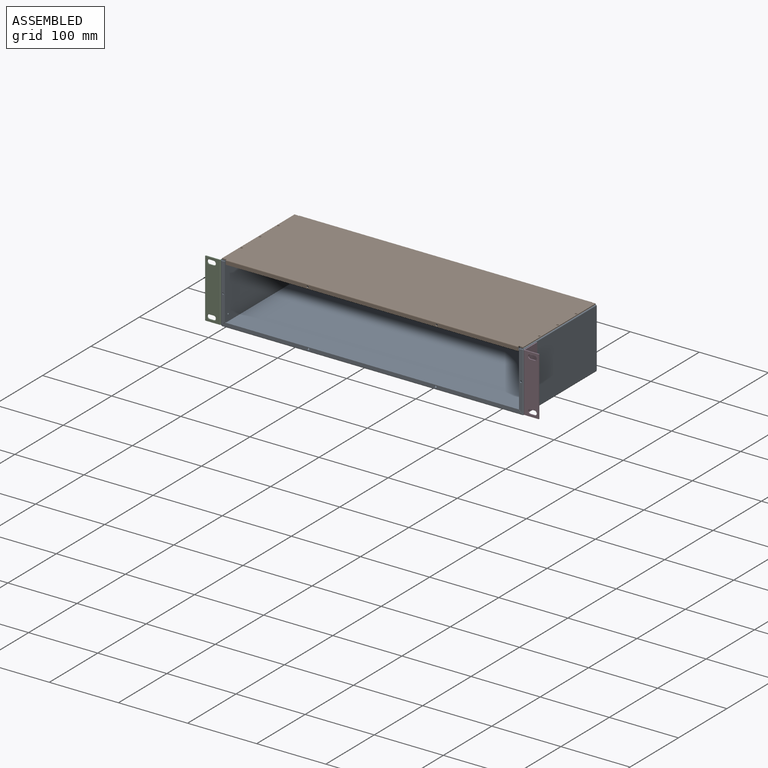
[diagram: assembled view]
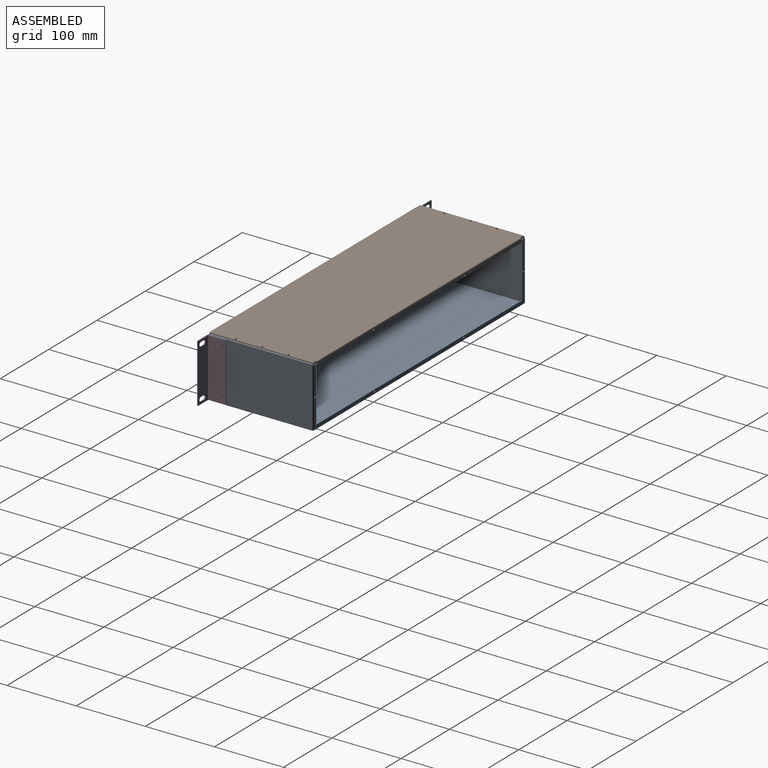
[diagram: assembled view, second angle]
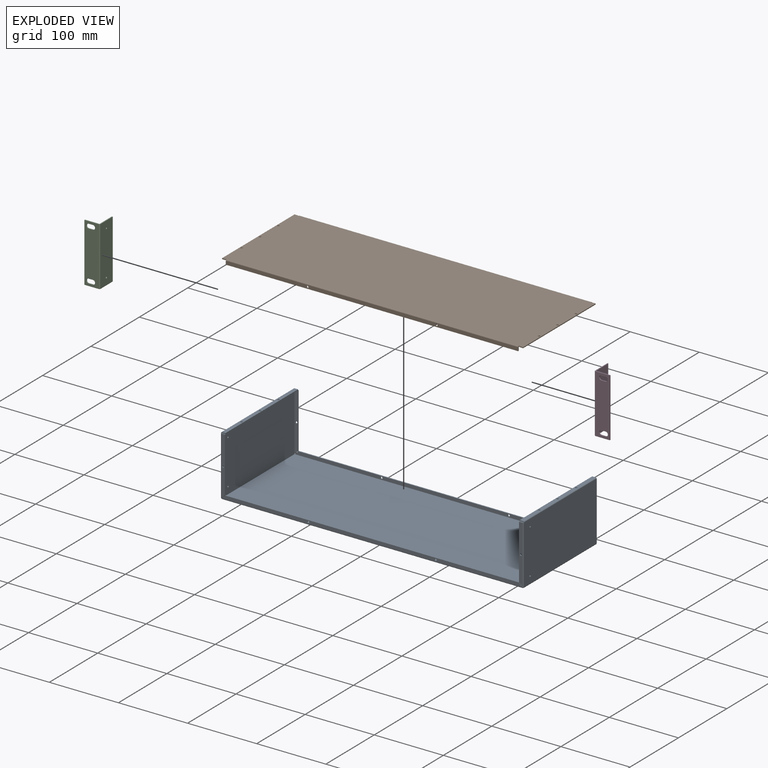
[diagram: exploded view]
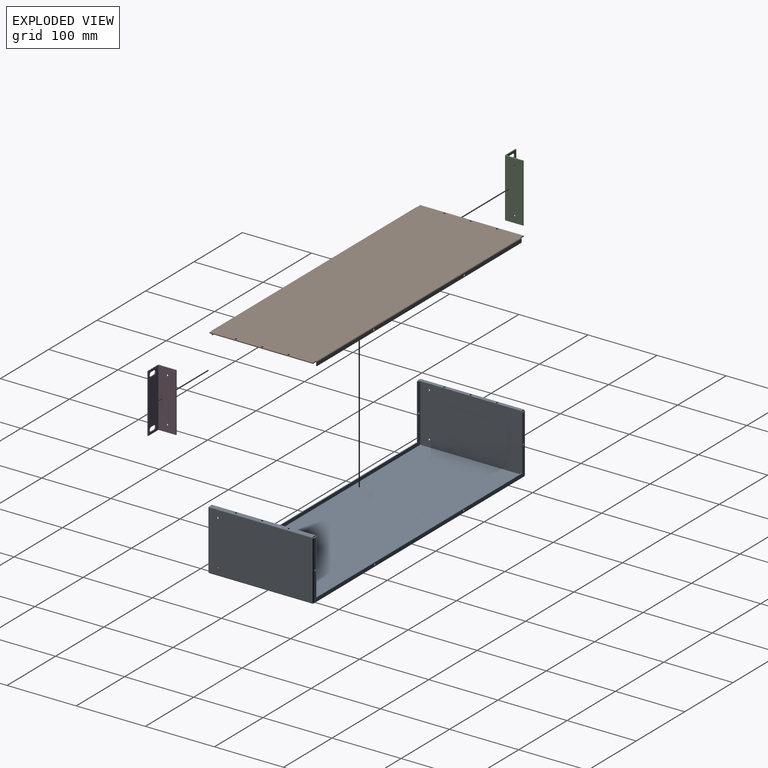
[diagram: exploded view, second angle]
ASSEMBLY  parts=4 mates=3
PART A: 120 faces, bbox 438.2x152.4x87.4 mm
  f0: plane 1.3x0.18mm, normal (0,-1,0), area 0.2mm2, adj f35,f43,f44,f107
  f1: plane 1.3x0.18mm, normal (0,1,0), area 0.2mm2, adj f30,f64,f65,f87
  f2: plane 1.3x0.18mm, normal (0,-1,0), area 0.2mm2, adj f6,f7,f27,f31
  f3: plane 1.3x0.18mm, normal (0,1,0), area 0.2mm2, adj f6,f7,f15,f34
  f4: plane 1.3x0.18mm, normal (0,1,0), area 0.2mm2, adj f6,f7,f16,f30
  f5: plane 1.3x0.18mm, normal (0,-1,0), area 0.2mm2, adj f6,f7,f26,f35
  f6: plane 435.53x149.76mm, normal (0,0,-1), area 65224.8mm2, adj f2,f3,f4,f5,f17,f28,f32,f36
  f7: plane 435.53x149.76mm, normal (0,0,1), area 65224.8mm2, adj f2,f3,f4,f5,f18,f29,f33,f37
  f8: plane 425.12x1.3mm, normal (0,0,1), area 550.7mm2, adj f9,f12,f13,f14
  f9: plane 5.03x5.03mm, normal (0.71,0,0.71), area 9.2mm2, adj f8,f13,f14,f16
  f10: cylinder r=1.42mm len=2.85mm, axis (0,1,0), area 11.6mm2, adj f13,f14
  f11: cylinder r=1.42mm len=2.85mm, axis (0,1,0), area 11.6mm2, adj f13,f14
  f12: plane 5.03x5.03mm, normal (-0.71,0,0.71), area 9.2mm2, adj f8,f13,f14,f15
  f13: plane 435.17x5.03mm, normal (0,1,0), area 2150.6mm2, adj f8,f9,f10,f11,f12,f17
  f14: plane 435.17x5.03mm, normal (0,-1,0), area 2150.6mm2, adj f8,f9,f10,f11,f12,f18
  f15: plane 1.32x1.32mm, normal (-1,0,0), area 1.4mm2, adj f3,f12,f17,f18
  f16: plane 1.32x1.32mm, normal (1,0,0), area 1.4mm2, adj f4,f9,f17,f18
  f17: cylinder r=1.32mm len=435.17mm, axis (-1,0,0), area 902.9mm2, adj f6,f13,f15,f16
  f18: cylinder r=0.03mm len=435.17mm, axis (-1,0,0), area 17.4mm2, adj f7,f14,f15,f16
  f19: plane 425.12x1.3mm, normal (0,0,1), area 550.7mm2, adj f20,f23,f24,f25
  f20: plane 5.03x5.03mm, normal (-0.71,0,0.71), area 9.2mm2, adj f19,f24,f25,f26
  f21: cylinder r=1.42mm len=2.85mm, axis (0,-1,0), area 11.6mm2, adj f24,f25
  f22: cylinder r=1.42mm len=2.85mm, axis (0,-1,0), area 11.6mm2, adj f24,f25
  f23: plane 5.03x5.03mm, normal (0.71,0,0.71), area 9.2mm2, adj f19,f24,f25,f27
  f24: plane 435.17x5.03mm, normal (0,-1,0), area 2150.6mm2, adj f19,f20,f21,f22,f23,f28
  f25: plane 435.17x5.03mm, normal (0,1,0), area 2150.6mm2, adj f19,f20,f21,f22,f23,f29
  f26: plane 1.32x1.32mm, normal (-1,0,0), area 1.4mm2, adj f5,f20,f28,f29
  f27: plane 1.32x1.32mm, normal (1,0,0), area 1.4mm2, adj f2,f23,f28,f29
  f28: cylinder r=1.32mm len=435.17mm, axis (-1,0,0), area 902.9mm2, adj f6,f24,f26,f27
  f29: cylinder r=0.03mm len=435.17mm, axis (-1,0,0), area 17.4mm2, adj f7,f25,f26,f27
  f30: plane 1.32x1.32mm, normal (0,1,0), area 1.4mm2, adj f1,f4,f32,f33
  f31: plane 1.32x1.32mm, normal (0,-1,0), area 1.4mm2, adj f2,f32,f33,f61
  f32: cylinder r=1.32mm len=149.76mm, axis (0,1,0), area 310.7mm2, adj f6,f30,f31,f64
  f33: cylinder r=0.03mm len=149.76mm, axis (0,1,0), area 6mm2, adj f7,f30,f31,f65
  f34: plane 1.32x1.32mm, normal (0,1,0), area 1.4mm2, adj f3,f36,f37,f40
  f35: plane 1.32x1.32mm, normal (0,-1,0), area 1.4mm2, adj f0,f5,f36,f37
  f36: cylinder r=1.32mm len=149.76mm, axis (0,1,0), area 310.7mm2, adj f6,f34,f35,f43
  f37: cylinder r=0.03mm len=149.76mm, axis (0,1,0), area 6mm2, adj f7,f34,f35,f44
  f38: plane 1.3x0.23mm, normal (0,-1,0), area 0.3mm2, adj f43,f44,f56,f106
  f39: plane 1.3x0.23mm, normal (0,1,0), area 0.3mm2, adj f43,f44,f55,f117
  f40: plane 1.3x0.18mm, normal (0,1,0), area 0.2mm2, adj f34,f43,f44,f116
  f41: cylinder r=1.27mm len=2.54mm, axis (-1,0,0), area 10.3mm2, adj f43,f44
  f42: cylinder r=1.27mm len=2.54mm, axis (-1,0,0), area 10.3mm2, adj f43,f44
  f43: plane 149.76x84.71mm, normal (-1,0,0), area 12675.8mm2, adj f0,f36,f38,f39,f40,f41,f42,f57
  f44: plane 149.76x84.71mm, normal (1,0,0), area 12675.8mm2, adj f0,f37,f38,f39,f40,f41,f42,f58
  f45: plane 1.3x0.03mm, normal (-1,0,0), area 0mm2, adj f47,f53,f54,f55
  f46: plane 149.81x1.3mm, normal (1,0,0), area 194.1mm2, adj f47,f52,f53,f54
  f47: plane 5.03x1.3mm, normal (0,1,0), area 6.5mm2, adj f45,f46,f53,f54
  f48: plane 1.3x0.03mm, normal (-1,0,0), area 0mm2, adj f52,f53,f54,f56
  f49: cylinder r=1.42mm len=2.85mm, axis (0,0,1), area 11.6mm2, adj f53,f54
  f50: cylinder r=1.42mm len=2.85mm, axis (0,0,1), area 11.6mm2, adj f53,f54
  f51: cylinder r=1.42mm len=2.85mm, axis (0,0,1), area 11.6mm2, adj f53,f54
  f52: plane 5.03x1.3mm, normal (0,-1,0), area 6.5mm2, adj f46,f48,f53,f54
  f53: plane 149.81x5.03mm, normal (0,0,1), area 734.4mm2, adj f45,f46,f47,f48,f49,f50,f51,f52
  f54: plane 149.81x5.03mm, normal (0,0,-1), area 734.4mm2, adj f45,f46,f47,f48,f49,f50,f51,f52
  f55: plane 1.32x1.32mm, normal (0,1,0), area 1.4mm2, adj f39,f45,f57,f58
  f56: plane 1.32x1.32mm, normal (0,-1,0), area 1.4mm2, adj f38,f48,f57,f58
  f57: cylinder r=1.32mm len=149.76mm, axis (0,1,0), area 310.7mm2, adj f43,f53,f55,f56
  f58: cylinder r=0.03mm len=149.76mm, axis (0,1,0), area 6mm2, adj f44,f54,f55,f56
  f59: plane 1.3x0.23mm, normal (0,1,0), area 0.3mm2, adj f64,f65,f76,f86
  f60: plane 1.3x0.23mm, normal (0,-1,0), area 0.3mm2, adj f64,f65,f77,f97
  f61: plane 1.3x0.18mm, normal (0,-1,0), area 0.2mm2, adj f31,f64,f65,f96
  f62: cylinder r=1.27mm len=2.54mm, axis (-1,0,0), area 10.3mm2, adj f64,f65
  f63: cylinder r=1.27mm len=2.54mm, axis (-1,0,0), area 10.3mm2, adj f64,f65
  f64: plane 149.76x84.71mm, normal (1,0,0), area 12675.8mm2, adj f1,f32,f59,f60,f61,f62,f63,f78
  f65: plane 149.76x84.71mm, normal (-1,0,0), area 12675.8mm2, adj f1,f33,f59,f60,f61,f62,f63,f79
  f66: plane 1.3x0.03mm, normal (1,0,0), area 0mm2, adj f68,f74,f75,f77
  f67: plane 149.81x1.3mm, normal (-1,0,0), area 194.1mm2, adj f68,f73,f74,f75
  f68: plane 5.03x1.3mm, normal (0,-1,0), area 6.5mm2, adj f66,f67,f74,f75
  f69: plane 1.3x0.03mm, normal (1,0,0), area 0mm2, adj f73,f74,f75,f76
  f70: cylinder r=1.42mm len=2.85mm, axis (0,0,1), area 11.6mm2, adj f74,f75
  f71: cylinder r=1.42mm len=2.85mm, axis (0,0,1), area 11.6mm2, adj f74,f75
  f72: cylinder r=1.42mm len=2.85mm, axis (0,0,1), area 11.6mm2, adj f74,f75
  f73: plane 5.03x1.3mm, normal (0,1,0), area 6.5mm2, adj f67,f69,f74,f75
  f74: plane 149.81x5.03mm, normal (0,0,1), area 734.4mm2, adj f66,f67,f68,f69,f70,f71,f72,f73
  f75: plane 149.81x5.03mm, normal (0,0,-1), area 734.4mm2, adj f66,f67,f68,f69,f70,f71,f72,f73
  f76: plane 1.32x1.32mm, normal (0,1,0), area 1.4mm2, adj f59,f69,f78,f79
  f77: plane 1.32x1.32mm, normal (0,-1,0), area 1.4mm2, adj f60,f66,f78,f79
  f78: cylinder r=1.32mm len=149.76mm, axis (0,1,0), area 310.7mm2, adj f64,f74,f76,f77
  f79: cylinder r=0.03mm len=149.76mm, axis (0,1,0), area 6mm2, adj f65,f75,f76,f77
  f80: plane 79.27x1.3mm, normal (-1,0,0), area 102.7mm2, adj f81,f83,f84,f85
  f81: plane 5.03x1.3mm, normal (0,0,1), area 6.5mm2, adj f80,f84,f85,f86
  f82: cylinder r=1.42mm len=2.85mm, axis (0,1,0), area 11.6mm2, adj f84,f85
  f83: plane 5.03x5.03mm, normal (-0.71,0,-0.71), area 9.2mm2, adj f80,f84,f85,f87
  f84: plane 84.3x5.03mm, normal (0,1,0), area 405mm2, adj f80,f81,f82,f83,f88
  f85: plane 84.3x5.03mm, normal (0,-1,0), area 405mm2, adj f80,f81,f82,f83,f89
  f86: plane 1.32x1.32mm, normal (0,0,1), area 1.4mm2, adj f59,f81,f88,f89
  f87: plane 1.32x1.32mm, normal (0,0,-1), area 1.4mm2, adj f1,f83,f88,f89
  f88: cylinder r=1.32mm len=84.3mm, axis (0,0,1), area 174.9mm2, adj f64,f84,f86,f87
  f89: cylinder r=0.03mm len=84.3mm, axis (0,0,1), area 3.4mm2, adj f65,f85,f86,f87
  f90: plane 79.27x1.3mm, normal (-1,0,0), area 102.7mm2, adj f91,f93,f94,f95
  f91: plane 5.03x5.03mm, normal (-0.71,0,-0.71), area 9.2mm2, adj f90,f94,f95,f96
  f92: cylinder r=1.42mm len=2.85mm, axis (0,-1,0), area 11.6mm2, adj f94,f95
  f93: plane 5.03x1.3mm, normal (0,0,1), area 6.5mm2, adj f90,f94,f95,f97
  f94: plane 84.3x5.03mm, normal (0,-1,0), area 405mm2, adj f90,f91,f92,f93,f98
  f95: plane 84.3x5.03mm, normal (0,1,0), area 405mm2, adj f90,f91,f92,f93,f99
  f96: plane 1.32x1.32mm, normal (0,0,-1), area 1.4mm2, adj f61,f91,f98,f99
  f97: plane 1.32x1.32mm, normal (0,0,1), area 1.4mm2, adj f60,f93,f98,f99
  f98: cylinder r=1.32mm len=84.3mm, axis (0,0,-1), area 174.9mm2, adj f64,f94,f96,f97
  f99: cylinder r=0.03mm len=84.3mm, axis (0,0,-1), area 3.4mm2, adj f65,f95,f96,f97
  f100: plane 79.27x1.3mm, normal (1,0,0), area 102.7mm2, adj f101,f103,f104,f105
  f101: plane 5.03x1.3mm, normal (0,0,1), area 6.5mm2, adj f100,f104,f105,f106
  f102: cylinder r=1.42mm len=2.85mm, axis (0,-1,0), area 11.6mm2, adj f104,f105
  f103: plane 5.03x5.03mm, normal (0.71,0,-0.71), area 9.2mm2, adj f100,f104,f105,f107
  f104: plane 84.3x5.03mm, normal (0,-1,0), area 405mm2, adj f100,f101,f102,f103,f108
  f105: plane 84.3x5.03mm, normal (0,1,0), area 405mm2, adj f100,f101,f102,f103,f109
  f106: plane 1.32x1.32mm, normal (0,0,1), area 1.4mm2, adj f38,f101,f108,f109
  f107: plane 1.32x1.32mm, normal (0,0,-1), area 1.4mm2, adj f0,f103,f108,f109
  f108: cylinder r=1.32mm len=84.3mm, axis (0,0,1), area 174.9mm2, adj f43,f104,f106,f107
  f109: cylinder r=0.03mm len=84.3mm, axis (0,0,1), area 3.4mm2, adj f44,f105,f106,f107
  f110: plane 79.27x1.3mm, normal (1,0,0), area 102.7mm2, adj f111,f113,f114,f115
  f111: plane 5.03x5.03mm, normal (0.71,0,-0.71), area 9.2mm2, adj f110,f114,f115,f116
  f112: cylinder r=1.42mm len=2.85mm, axis (0,1,0), area 11.6mm2, adj f114,f115
  f113: plane 5.03x1.3mm, normal (0,0,1), area 6.5mm2, adj f110,f114,f115,f117
  f114: plane 84.3x5.03mm, normal (0,1,0), area 405mm2, adj f110,f111,f112,f113,f118
  f115: plane 84.3x5.03mm, normal (0,-1,0), area 405mm2, adj f110,f111,f112,f113,f119
  f116: plane 1.32x1.32mm, normal (0,0,-1), area 1.4mm2, adj f40,f111,f118,f119
  f117: plane 1.32x1.32mm, normal (0,0,1), area 1.4mm2, adj f39,f113,f118,f119
  f118: cylinder r=1.32mm len=84.3mm, axis (0,0,-1), area 174.9mm2, adj f43,f114,f116,f117
  f119: cylinder r=0.03mm len=84.3mm, axis (0,0,-1), area 3.4mm2, adj f44,f115,f116,f117
PART B: 48 faces, bbox 435.6x152.4x6.4 mm
  f0: plane 4.97x1.3mm, normal (0,1,0), area 6.4mm2, adj f2,f3,f4,f19
  f1: plane 4.97x1.3mm, normal (0,-1,0), area 6.4mm2, adj f2,f3,f6,f25
  f2: plane 435.58x149.76mm, normal (0,0,1), area 65189.1mm2, adj f0,f1,f4,f5,f6,f7,f8,f9
  f3: plane 435.58x149.76mm, normal (0,0,-1), area 65189.1mm2, adj f0,f1,f4,f5,f6,f7,f8,f9
  f4: plane 149.76x1.3mm, normal (1,0,0), area 194mm2, adj f0,f2,f3,f13
  f5: plane 4.97x1.3mm, normal (0,1,0), area 6.4mm2, adj f2,f3,f6,f21
  f6: plane 149.76x1.3mm, normal (-1,0,0), area 194mm2, adj f1,f2,f3,f5
  f7: cylinder r=1.46mm len=2.92mm, axis (0,0,1), area 11.9mm2, adj f2,f3
  f8: cylinder r=1.46mm len=2.92mm, axis (0,0,1), area 11.9mm2, adj f2,f3
  f9: cylinder r=1.46mm len=2.92mm, axis (0,0,1), area 11.9mm2, adj f2,f3
  f10: cylinder r=1.46mm len=2.92mm, axis (0,0,1), area 11.9mm2, adj f2,f3
  f11: cylinder r=1.46mm len=2.92mm, axis (0,0,1), area 11.9mm2, adj f2,f3
  f12: cylinder r=1.46mm len=2.92mm, axis (0,0,1), area 11.9mm2, adj f2,f3
  f13: plane 4.97x1.3mm, normal (0,-1,0), area 6.4mm2, adj f2,f3,f4,f15
  f14: cylinder r=0.69mm len=1.38mm, axis (0,0,-1), area 2.8mm2, adj f2,f3,f15,f16
  f15: plane 1.3x0.03mm, normal (-1,0,0), area 0mm2, adj f2,f3,f13,f14
  f16: plane 1.3x0.03mm, normal (1,0,0), area 0mm2, adj f2,f3,f14,f34
  f17: cylinder r=0.69mm len=1.38mm, axis (0,0,-1), area 2.8mm2, adj f2,f3,f18,f19
  f18: plane 1.3x0.03mm, normal (1,0,0), area 0mm2, adj f2,f3,f17,f45
  f19: plane 1.3x0.03mm, normal (-1,0,0), area 0mm2, adj f0,f2,f3,f17
  f20: cylinder r=0.69mm len=1.38mm, axis (0,0,-1), area 2.8mm2, adj f2,f3,f21,f22
  f21: plane 1.3x0.03mm, normal (1,0,0), area 0mm2, adj f2,f3,f5,f20
  f22: plane 1.3x0.03mm, normal (-1,0,0), area 0mm2, adj f2,f3,f20,f44
  f23: cylinder r=0.69mm len=1.38mm, axis (0,0,-1), area 2.8mm2, adj f2,f3,f24,f25
  f24: plane 1.3x0.03mm, normal (-1,0,0), area 0mm2, adj f2,f3,f23,f33
  f25: plane 1.3x0.03mm, normal (1,0,0), area 0mm2, adj f1,f2,f3,f23
  f26: plane 5.03x1.3mm, normal (-1,0,0), area 6.5mm2, adj f27,f31,f32,f33
  f27: plane 422.88x1.3mm, normal (0,0,-1), area 547.8mm2, adj f26,f30,f31,f32
  f28: cylinder r=1.42mm len=2.85mm, axis (0,-1,0), area 11.6mm2, adj f31,f32
  f29: cylinder r=1.42mm len=2.85mm, axis (0,-1,0), area 11.6mm2, adj f31,f32
  f30: plane 5.03x1.3mm, normal (1,0,0), area 6.5mm2, adj f27,f31,f32,f34
  f31: plane 422.88x5.03mm, normal (0,-1,0), area 2114.1mm2, adj f26,f27,f28,f29,f30,f35
  f32: plane 422.88x5.03mm, normal (0,1,0), area 2114.1mm2, adj f26,f27,f28,f29,f30,f36
  f33: plane 1.32x1.32mm, normal (-1,0,0), area 1.4mm2, adj f24,f26,f35,f36
  f34: plane 1.32x1.32mm, normal (1,0,0), area 1.4mm2, adj f16,f30,f35,f36
  f35: cylinder r=1.32mm len=422.88mm, axis (-1,0,0), area 877.4mm2, adj f2,f31,f33,f34
  f36: cylinder r=0.03mm len=422.88mm, axis (-1,0,0), area 16.9mm2, adj f3,f32,f33,f34
  f37: plane 422.88x1.3mm, normal (0,0,-1), area 547.8mm2, adj f38,f41,f42,f43
  f38: plane 5.03x1.3mm, normal (-1,0,0), area 6.5mm2, adj f37,f42,f43,f44
  f39: cylinder r=1.42mm len=2.85mm, axis (0,1,0), area 11.6mm2, adj f42,f43
  f40: cylinder r=1.42mm len=2.85mm, axis (0,1,0), area 11.6mm2, adj f42,f43
  f41: plane 5.03x1.3mm, normal (1,0,0), area 6.5mm2, adj f37,f42,f43,f45
  f42: plane 422.88x5.03mm, normal (0,1,0), area 2114.1mm2, adj f37,f38,f39,f40,f41,f46
  f43: plane 422.88x5.03mm, normal (0,-1,0), area 2114.1mm2, adj f37,f38,f39,f40,f41,f47
  f44: plane 1.32x1.32mm, normal (-1,0,0), area 1.4mm2, adj f22,f38,f46,f47
  f45: plane 1.32x1.32mm, normal (1,0,0), area 1.4mm2, adj f18,f41,f46,f47
  f46: cylinder r=1.32mm len=422.88mm, axis (-1,0,0), area 877.4mm2, adj f2,f42,f44,f45
  f47: cylinder r=0.03mm len=422.88mm, axis (-1,0,0), area 16.9mm2, adj f3,f43,f44,f45
PART C: 26 faces, bbox 22.2x26.7x84.8 mm
  f0: plane 25.37x1.3mm, normal (0,0,-1), area 32.9mm2, adj f1,f5,f6,f22
  f1: plane 84.76x1.3mm, normal (0,1,0), area 109.8mm2, adj f0,f2,f5,f6
  f2: plane 25.37x1.3mm, normal (0,0,1), area 32.9mm2, adj f1,f5,f6,f23
  f3: cylinder r=1.27mm len=2.54mm, axis (-1,0,0), area 10.3mm2, adj f5,f6
  f4: cylinder r=1.27mm len=2.54mm, axis (-1,0,0), area 10.3mm2, adj f5,f6
  f5: plane 84.76x25.37mm, normal (1,0,0), area 2140.6mm2, adj f0,f1,f2,f3,f4,f24
  f6: plane 84.76x25.37mm, normal (-1,0,0), area 2140.6mm2, adj f0,f1,f2,f3,f4,f25
  f7: cylinder r=3.17mm len=6.35mm, axis (0,-1,0), area 12.9mm2, adj f8,f17,f18,f19
  f8: plane 6.1x1.3mm, normal (0,0,1), area 7.9mm2, adj f7,f9,f18,f19
  f9: cylinder r=3.17mm len=6.35mm, axis (0,-1,0), area 12.9mm2, adj f8,f17,f18,f19
  f10: plane 6.1x1.3mm, normal (0,0,-1), area 7.9mm2, adj f11,f16,f18,f19
  f11: cylinder r=3.17mm len=6.35mm, axis (0,-1,0), area 12.9mm2, adj f10,f12,f18,f19
  f12: plane 6.1x1.3mm, normal (0,0,1), area 7.9mm2, adj f11,f16,f18,f19
  f13: plane 84.51x1.3mm, normal (-1,0,0), area 109.5mm2, adj f18,f19,f20,f21
  f14: plane 20.76x1.3mm, normal (0,0,-1), area 26.9mm2, adj f18,f19,f20,f22
  f15: plane 20.76x1.3mm, normal (0,0,1), area 26.9mm2, adj f18,f19,f21,f23
  f16: cylinder r=3.17mm len=6.35mm, axis (0,-1,0), area 12.9mm2, adj f10,f12,f18,f19
  f17: plane 6.1x1.3mm, normal (0,0,-1), area 7.9mm2, adj f7,f9,f18,f19
  f18: plane 84.76x20.89mm, normal (0,-1,0), area 1630mm2, adj f7,f8,f9,f10,f11,f12,f13,f14
  f19: plane 84.76x20.89mm, normal (0,1,0), area 1630mm2, adj f7,f8,f9,f10,f11,f12,f13,f14
  f20: cylinder r=0.13mm len=1.3mm, axis (0,-1,0), area 0.3mm2, adj f13,f14,f18,f19
  f21: cylinder r=0.13mm len=1.3mm, axis (0,1,0), area 0.3mm2, adj f13,f15,f18,f19
  f22: plane 1.32x1.32mm, normal (0,0,-1), area 1.4mm2, adj f0,f14,f24,f25
  f23: plane 1.32x1.32mm, normal (0,0,1), area 1.4mm2, adj f2,f15,f24,f25
  f24: cylinder r=1.32mm len=84.76mm, axis (0,0,-1), area 175.9mm2, adj f5,f18,f22,f23
  f25: cylinder r=0.03mm len=84.76mm, axis (0,0,-1), area 3.4mm2, adj f6,f19,f22,f23
PART D: 26 faces, bbox 22.2x26.7x84.8 mm
  f0: plane 25.37x1.3mm, normal (0,0,1), area 32.9mm2, adj f1,f5,f6,f23
  f1: plane 84.76x1.3mm, normal (0,1,0), area 109.8mm2, adj f0,f4,f5,f6
  f2: cylinder r=1.27mm len=2.54mm, axis (1,0,0), area 10.3mm2, adj f5,f6
  f3: cylinder r=1.27mm len=2.54mm, axis (1,0,0), area 10.3mm2, adj f5,f6
  f4: plane 25.37x1.3mm, normal (0,0,-1), area 32.9mm2, adj f1,f5,f6,f22
  f5: plane 84.76x25.37mm, normal (-1,0,0), area 2140.6mm2, adj f0,f1,f2,f3,f4,f24
  f6: plane 84.76x25.37mm, normal (1,0,0), area 2140.6mm2, adj f0,f1,f2,f3,f4,f25
  f7: plane 6.1x1.3mm, normal (0,0,1), area 7.9mm2, adj f8,f17,f18,f19
  f8: cylinder r=3.17mm len=6.35mm, axis (0,1,0), area 12.9mm2, adj f7,f9,f18,f19
  f9: plane 6.1x1.3mm, normal (0,0,-1), area 7.9mm2, adj f8,f17,f18,f19
  f10: plane 84.51x1.3mm, normal (1,0,0), area 109.5mm2, adj f18,f19,f20,f21
  f11: plane 20.76x1.3mm, normal (0,0,1), area 26.9mm2, adj f18,f19,f21,f23
  f12: cylinder r=3.17mm len=6.35mm, axis (0,1,0), area 12.9mm2, adj f13,f15,f18,f19
  f13: plane 6.1x1.3mm, normal (0,0,-1), area 7.9mm2, adj f12,f14,f18,f19
  f14: cylinder r=3.17mm len=6.35mm, axis (0,1,0), area 12.9mm2, adj f13,f15,f18,f19
  f15: plane 6.1x1.3mm, normal (0,0,1), area 7.9mm2, adj f12,f14,f18,f19
  f16: plane 20.76x1.3mm, normal (0,0,-1), area 26.9mm2, adj f18,f19,f20,f22
  f17: cylinder r=3.17mm len=6.35mm, axis (0,1,0), area 12.9mm2, adj f7,f9,f18,f19
  f18: plane 84.76x20.89mm, normal (0,-1,0), area 1630mm2, adj f7,f8,f9,f10,f11,f12,f13,f14
  f19: plane 84.76x20.89mm, normal (0,1,0), area 1630mm2, adj f7,f8,f9,f10,f11,f12,f13,f14
  f20: cylinder r=0.13mm len=1.3mm, axis (0,-1,0), area 0.3mm2, adj f10,f16,f18,f19
  f21: cylinder r=0.13mm len=1.3mm, axis (0,1,0), area 0.3mm2, adj f10,f11,f18,f19
  f22: plane 1.32x1.32mm, normal (0,0,-1), area 1.4mm2, adj f4,f16,f24,f25
  f23: plane 1.32x1.32mm, normal (0,0,1), area 1.4mm2, adj f0,f11,f24,f25
  f24: cylinder r=1.32mm len=84.76mm, axis (0,0,-1), area 175.9mm2, adj f5,f18,f22,f23
  f25: cylinder r=0.03mm len=84.76mm, axis (0,0,-1), area 3.4mm2, adj f6,f19,f22,f23
PLACE A at identity
PLACE B t=(0,0,41.61)mm
PLACE C t=(-1.31,1.32,0)mm
PLACE D t=(1.31,1.32,0)mm
MATE fastened D.f3 <-> A.f62  axis (-1,0,0) through (219.09,-62.18,74.6)mm
MATE fastened A.f49 <-> B.f7  axis (0,0,1) through (-215.25,-38.1,86.06)mm
MATE fastened A.f62 <-> C.f4  axis (-1,0,0) through (-219.09,-62.18,74.6)mm
